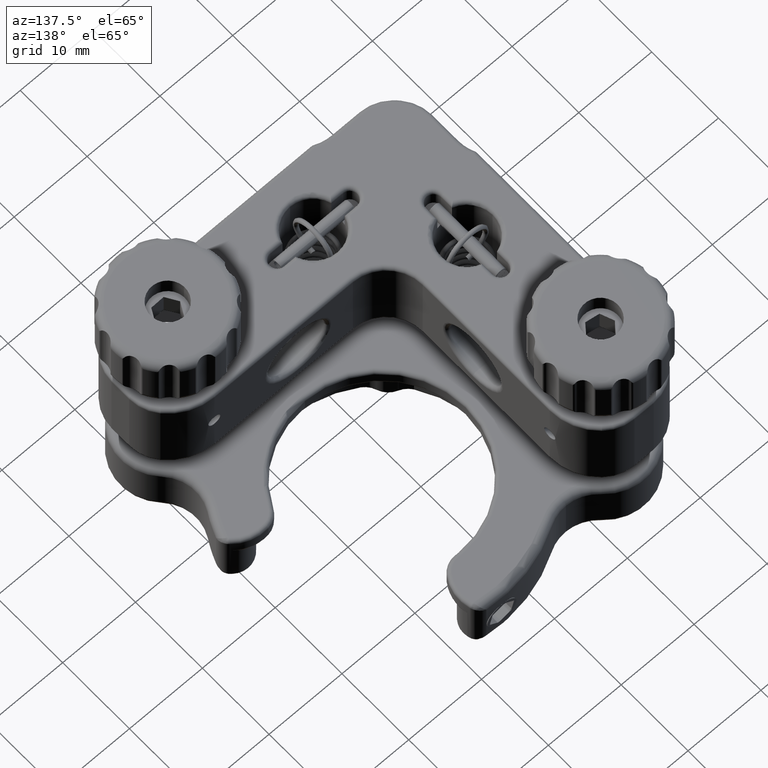
[diagram: clean part render]
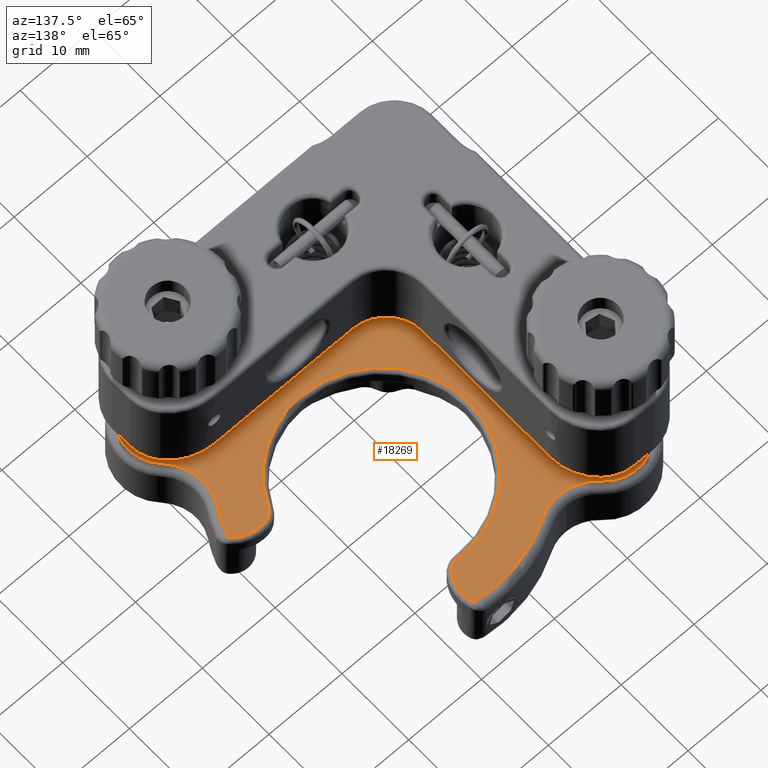
[diagram: same view with one face highlighted and labeled with its STEP entity id]
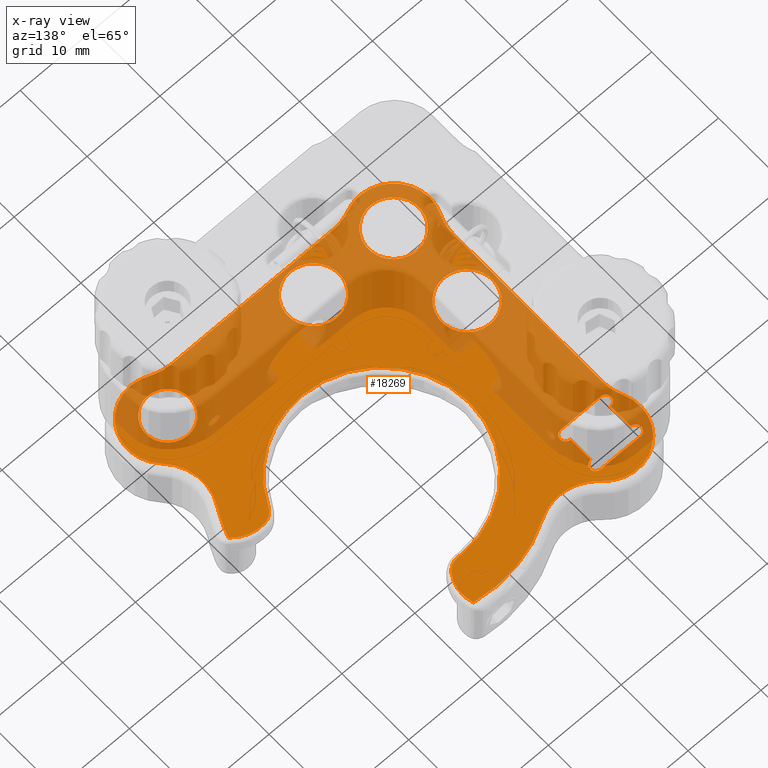
[diagram: x-ray of the same camera — body ghosted, the highlighted face saturated]
A machine part, auxiliary view. The second image highlights one B-rep face of the part: STEP entity #18269.
The next image is the same camera in x-ray: the body ghosted, the highlighted face saturated — about 53% of this face is hidden behind the body in this view.
In plain terms, the highlighted planar face has unit normal (-0, -0, -1).
Its self-contained STEP definition (entity closure, byte-faithful):
#28 = AXIS2_PLACEMENT_3D ( 'NONE', #5793, #16394, #14719 ) ;
#58 = EDGE_CURVE ( 'NONE', #18322, #8209, #10334, .T. ) ;
#112 = EDGE_CURVE ( 'NONE', #8525, #18322, #18781, .T. ) ;
#172 = CARTESIAN_POINT ( 'NONE',  ( -20.45859384005936121, 10.83108220009708766, -10.00000000000000533 ) ) ;
#280 = DIRECTION ( 'NONE',  ( 1.665334536937734811E-16, 6.342465669864681941E-17, 1.000000000000000000 ) ) ;
#313 = CARTESIAN_POINT ( 'NONE',  ( -19.70067387653270075, 13.52851386254296351, -10.00000000000000533 ) ) ;
#315 = AXIS2_PLACEMENT_3D ( 'NONE', #20773, #15407, #4969 ) ;
#329 = AXIS2_PLACEMENT_3D ( 'NONE', #16805, #8102, #20171 ) ;
#358 = ORIENTED_EDGE ( 'NONE', *, *, #445, .F. ) ;
#368 = CARTESIAN_POINT ( 'NONE',  ( -43.58220024130411474, 3.499999999999992895, -10.00000000000000178 ) ) ;
#445 = EDGE_CURVE ( 'NONE', #1038, #20770, #11479, .T. ) ;
#482 = AXIS2_PLACEMENT_3D ( 'NONE', #1894, #10707, #17734 ) ;
#513 = EDGE_CURVE ( 'NONE', #13196, #8630, #2801, .T. ) ;
#533 = CIRCLE ( 'NONE', #13420, 12.00000000000001954 ) ;
#606 = ORIENTED_EDGE ( 'NONE', *, *, #8495, .T. ) ;
#610 = VERTEX_POINT ( 'NONE', #5897 ) ;
#623 = EDGE_CURVE ( 'NONE', #16321, #20283, #9284, .T. ) ;
#694 = AXIS2_PLACEMENT_3D ( 'NONE', #997, #20311, #4521 ) ;
#719 = DIRECTION ( 'NONE',  ( -1.665334536937734811E-16, -6.342465669864681941E-17, -1.000000000000000000 ) ) ;
#734 = CARTESIAN_POINT ( 'NONE',  ( -34.53707371866273945, 33.48938301263900996, -10.00000000000000533 ) ) ;
#753 = EDGE_CURVE ( 'NONE', #8508, #14167, #6715, .T. ) ;
#794 = ORIENTED_EDGE ( 'NONE', *, *, #513, .F. ) ;
#997 = CARTESIAN_POINT ( 'NONE',  ( -35.08220024130413606, 19.49999999999995026, -10.00000000000000533 ) ) ;
#1038 = VERTEX_POINT ( 'NONE', #4951 ) ;
#1056 = VERTEX_POINT ( 'NONE', #14272 ) ;
#1077 = AXIS2_PLACEMENT_3D ( 'NONE', #18103, #2467, #9381 ) ;
#1090 = EDGE_LOOP ( 'NONE', ( #16538, #6265 ) ) ;
#1236 = LINE ( 'NONE', #1586, #21104 ) ;
#1252 = ORIENTED_EDGE ( 'NONE', *, *, #8950, .F. ) ;
#1469 = ORIENTED_EDGE ( 'NONE', *, *, #16513, .T. ) ;
#1522 = CARTESIAN_POINT ( 'NONE',  ( -57.33220024130411474, 28.00000000000003197, -10.00000000000000178 ) ) ;
#1567 = DIRECTION ( 'NONE',  ( 1.665334536937734811E-16, 6.342465669864681941E-17, 1.000000000000000000 ) ) ;
#1586 = CARTESIAN_POINT ( 'NONE',  ( -58.58220024130411474, 4.582575694955838941, -9.999999999999998224 ) ) ;
#1595 = DIRECTION ( 'NONE',  ( 0.000000000000000000, 1.000000000000000000, 0.000000000000000000 ) ) ;
#1642 = VECTOR ( 'NONE', #19815, 1000.000000000000000 ) ;
#1679 = DIRECTION ( 'NONE',  ( -1.665334536937734811E-16, -6.342465669864681941E-17, -1.000000000000000000 ) ) ;
#1707 = EDGE_CURVE ( 'NONE', #6890, #3836, #11537, .T. ) ;
#1809 = VECTOR ( 'NONE', #20981, 1000.000000000000000 ) ;
#1826 = CIRCLE ( 'NONE', #4693, 12.00000000000001954 ) ;
#1894 = CARTESIAN_POINT ( 'NONE',  ( -43.58220024130411474, 4.336808689942017736E-15, -10.00000000000000178 ) ) ;
#2053 = EDGE_CURVE ( 'NONE', #14781, #13804, #17634, .T. ) ;
#2059 = VERTEX_POINT ( 'NONE', #14920 ) ;
#2107 = CARTESIAN_POINT ( 'NONE',  ( -49.99962454634827935, -3.999999999999998224, -10.00000000000000000 ) ) ;
#2132 = EDGE_CURVE ( 'NONE', #16280, #22085, #4522, .T. ) ;
#2214 = AXIS2_PLACEMENT_3D ( 'NONE', #13365, #2731, #12996 ) ;
#2236 = DIRECTION ( 'NONE',  ( 2.428612866367527723E-14, -1.000000000000000000, 0.000000000000000000 ) ) ;
#2367 = DIRECTION ( 'NONE',  ( 1.665334536937734811E-16, 6.342465669864681941E-17, 1.000000000000000000 ) ) ;
#2467 = DIRECTION ( 'NONE',  ( 1.665334536937734811E-16, 6.342465669864681941E-17, 1.000000000000000000 ) ) ;
#2560 = DIRECTION ( 'NONE',  ( 0.000000000000000000, -1.000000000000000000, 0.000000000000000000 ) ) ;
#2607 = VERTEX_POINT ( 'NONE', #6101 ) ;
#2652 = DIRECTION ( 'NONE',  ( 0.000000000000000000, -1.000000000000000000, 0.000000000000000000 ) ) ;
#2731 = DIRECTION ( 'NONE',  ( 1.665334536937734811E-16, 6.342465669864681941E-17, 1.000000000000000000 ) ) ;
#2790 = ORIENTED_EDGE ( 'NONE', *, *, #17265, .T. ) ;
#2801 = LINE ( 'NONE', #9832, #20292 ) ;
#2903 = CARTESIAN_POINT ( 'NONE',  ( -23.58220024130412185, 2.602085213965210642E-15, -10.00000000000000533 ) ) ;
#2969 = CARTESIAN_POINT ( 'NONE',  ( -36.58220024130412185, 34.92724862054149071, -10.00000000000000533 ) ) ;
#3014 = AXIS2_PLACEMENT_3D ( 'NONE', #11902, #1679, #17625 ) ;
#3152 = AXIS2_PLACEMENT_3D ( 'NONE', #16694, #19934, #20406 ) ;
#3238 = EDGE_CURVE ( 'NONE', #21597, #7541, #17823, .T. ) ;
#3283 = ORIENTED_EDGE ( 'NONE', *, *, #112, .T. ) ;
#3291 = DIRECTION ( 'NONE',  ( 2.775557561562888984E-15, -1.000000000000000000, 0.000000000000000000 ) ) ;
#3398 = DIRECTION ( 'NONE',  ( 0.000000000000000000, -1.000000000000000000, 0.000000000000000000 ) ) ;
#3625 = DIRECTION ( 'NONE',  ( 4.857225732735055447E-14, -1.000000000000000000, 0.000000000000000000 ) ) ;
#3836 = VERTEX_POINT ( 'NONE', #15657 ) ;
#3960 = CARTESIAN_POINT ( 'NONE',  ( -51.83220024130410764, 33.99999999999997868, -10.00000000000000178 ) ) ;
#4004 = VERTEX_POINT ( 'NONE', #7224 ) ;
#4145 = ORIENTED_EDGE ( 'NONE', *, *, #2053, .T. ) ;
#4157 = DIRECTION ( 'NONE',  ( -1.665334536937734811E-16, -6.342465669864681941E-17, -1.000000000000000000 ) ) ;
#4377 = CARTESIAN_POINT ( 'NONE',  ( -27.66477593625996789, -3.999999999999991562, -10.00000000000000355 ) ) ;
#4410 = ORIENTED_EDGE ( 'NONE', *, *, #9391, .T. ) ;
#4521 = DIRECTION ( 'NONE',  ( 0.000000000000000000, -1.000000000000000000, 1.020425574104004369E-16 ) ) ;
#4522 = CIRCLE ( 'NONE', #17387, 3.499999999999989342 ) ;
#4557 = VERTEX_POINT ( 'NONE', #7238 ) ;
#4562 = EDGE_LOOP ( 'NONE', ( #794, #15201, #1252, #358, #13049, #15104, #6554, #12678 ) ) ;
#4580 = EDGE_CURVE ( 'NONE', #4004, #6735, #5343, .T. ) ;
#4606 = CARTESIAN_POINT ( 'NONE',  ( -18.93772492644867000, 14.17497260025614736, -10.00000000000000533 ) ) ;
#4612 = AXIS2_PLACEMENT_3D ( 'NONE', #7477, #16438, #21373 ) ;
#4680 = DIRECTION ( 'NONE',  ( 0.000000000000000000, 1.000000000000000000, 0.000000000000000000 ) ) ;
#4686 = EDGE_CURVE ( 'NONE', #13585, #19889, #18249, .T. ) ;
#4693 = AXIS2_PLACEMENT_3D ( 'NONE', #16782, #719, #2652 ) ;
#4800 = CARTESIAN_POINT ( 'NONE',  ( -54.58220024130412185, 14.49999999999999822, -9.999999999999998224 ) ) ;
#4829 = AXIS2_PLACEMENT_3D ( 'NONE', #2903, #15159, #13184 ) ;
#4951 = CARTESIAN_POINT ( 'NONE',  ( -51.83220024130411474, 28.00000000000003197, -10.00000000000000178 ) ) ;
#4969 = DIRECTION ( 'NONE',  ( 0.000000000000000000, -1.000000000000000000, 0.000000000000000000 ) ) ;
#5078 = CARTESIAN_POINT ( 'NONE',  ( -57.33220024130411474, 28.75000000000003197, -10.00000000000000178 ) ) ;
#5089 = DIRECTION ( 'NONE',  ( 0.000000000000000000, -1.000000000000000000, 0.000000000000000000 ) ) ;
#5236 = CARTESIAN_POINT ( 'NONE',  ( -15.29732099256120392, 7.771464153072564329, -10.00000000000000711 ) ) ;
#5343 = CIRCLE ( 'NONE', #4612, 4.500000000000008882 ) ;
#5436 = FACE_BOUND ( 'NONE', #8223, .T. ) ;
#5500 = EDGE_LOOP ( 'NONE', ( #18621, #8309 ) ) ;
#5523 = AXIS2_PLACEMENT_3D ( 'NONE', #6723, #1567, #19319 ) ;
#5537 = AXIS2_PLACEMENT_3D ( 'NONE', #7649, #5910, #11097 ) ;
#5582 = DIRECTION ( 'NONE',  ( 0.000000000000000000, -1.000000000000000000, 0.000000000000000000 ) ) ;
#5592 = ORIENTED_EDGE ( 'NONE', *, *, #13685, .T. ) ;
#5619 = CARTESIAN_POINT ( 'NONE',  ( -32.25741849363161862, 36.17073679298167121, -10.00000000000000533 ) ) ;
#5642 = LINE ( 'NONE', #21422, #1809 ) ;
#5759 = VERTEX_POINT ( 'NONE', #14021 ) ;
#5793 = CARTESIAN_POINT ( 'NONE',  ( -64.58220024130412185, 4.582575694955838941, -9.999999999999998224 ) ) ;
#5879 = CIRCLE ( 'NONE', #16899, 12.00000000000001954 ) ;
#5897 = CARTESIAN_POINT ( 'NONE',  ( -57.33220024130405790, 32.49999999999997868, -10.00000000000000178 ) ) ;
#5910 = DIRECTION ( 'NONE',  ( 1.665334536937734811E-16, 6.342465669864681941E-17, 1.000000000000000000 ) ) ;
#5971 = CARTESIAN_POINT ( 'NONE',  ( -35.08220024130413606, 7.499999999999932498, -10.00000000000000533 ) ) ;
#6024 = EDGE_LOOP ( 'NONE', ( #14785, #11931 ) ) ;
#6025 = DIRECTION ( 'NONE',  ( 0.000000000000000000, -1.000000000000000000, 0.000000000000000000 ) ) ;
#6101 = CARTESIAN_POINT ( 'NONE',  ( -51.83220024130410764, 32.49999999999997868, -10.00000000000000178 ) ) ;
#6265 = ORIENTED_EDGE ( 'NONE', *, *, #14724, .T. ) ;
#6295 = EDGE_CURVE ( 'NONE', #22085, #16280, #10217, .T. ) ;
#6380 = DIRECTION ( 'NONE',  ( 0.000000000000000000, -1.000000000000000000, 0.000000000000000000 ) ) ;
#6543 = CIRCLE ( 'NONE', #16091, 3.464101615137754830 ) ;
#6551 = DIRECTION ( 'NONE',  ( 0.000000000000000000, -1.000000000000000000, 0.000000000000000000 ) ) ;
#6554 = ORIENTED_EDGE ( 'NONE', *, *, #8296, .F. ) ;
#6608 = CARTESIAN_POINT ( 'NONE',  ( -57.33220024130411474, 28.00000000000003197, -10.00000000000000178 ) ) ;
#6715 = CIRCLE ( 'NONE', #482, 3.499999999999988454 ) ;
#6723 = CARTESIAN_POINT ( 'NONE',  ( -34.53707371866273945, 33.48938301263900996, -10.00000000000000533 ) ) ;
#6735 = VERTEX_POINT ( 'NONE', #11282 ) ;
#6890 = VERTEX_POINT ( 'NONE', #22615 ) ;
#6912 = CIRCLE ( 'NONE', #694, 16.99999999999999645 ) ;
#6941 = ORIENTED_EDGE ( 'NONE', *, *, #9759, .T. ) ;
#6943 = CARTESIAN_POINT ( 'NONE',  ( -25.16518919355678463, -4.545454545454541417, -10.00000000000000533 ) ) ;
#7077 = DIRECTION ( 'NONE',  ( 0.000000000000000000, -1.000000000000000000, 0.000000000000000000 ) ) ;
#7161 = EDGE_CURVE ( 'NONE', #13804, #11093, #21185, .T. ) ;
#7224 = CARTESIAN_POINT ( 'NONE',  ( -19.00923245711677012, 14.25094639469812208, -10.00000000000000533 ) ) ;
#7238 = CARTESIAN_POINT ( 'NONE',  ( -51.04971653536203036, 35.03858147670125334, -10.00000000000000178 ) ) ;
#7262 = CIRCLE ( 'NONE', #315, 5.000000000000004441 ) ;
#7271 = AXIS2_PLACEMENT_3D ( 'NONE', #8758, #12426, #18980 ) ;
#7276 = ORIENTED_EDGE ( 'NONE', *, *, #22555, .T. ) ;
#7305 = DIRECTION ( 'NONE',  ( 0.000000000000000000, 1.000000000000000000, 0.000000000000000000 ) ) ;
#7315 = CIRCLE ( 'NONE', #14738, 0.7500000000000006661 ) ;
#7450 = ORIENTED_EDGE ( 'NONE', *, *, #15644, .T. ) ;
#7477 = CARTESIAN_POINT ( 'NONE',  ( -22.12071884448841530, 10.99999999999995026, -10.00000000000000533 ) ) ;
#7541 = VERTEX_POINT ( 'NONE', #13329 ) ;
#7639 = DIRECTION ( 'NONE',  ( 1.665334536937734811E-16, 6.342465669864681941E-17, 1.000000000000000000 ) ) ;
#7649 = CARTESIAN_POINT ( 'NONE',  ( -51.83220024130411474, 28.75000000000003197, -10.00000000000000178 ) ) ;
#7651 = VERTEX_POINT ( 'NONE', #5619 ) ;
#7754 = CARTESIAN_POINT ( 'NONE',  ( -35.08220024130413606, 19.49999999999995026, -10.00000000000000533 ) ) ;
#7964 = DIRECTION ( 'NONE',  ( -7.362534339704861848E-17, -1.000000000000000000, 6.342465669864746036E-17 ) ) ;
#8019 = CARTESIAN_POINT ( 'NONE',  ( -54.58220024130411474, -5.204170427930421283E-15, -10.00000000000000000 ) ) ;
#8036 = EDGE_CURVE ( 'NONE', #17370, #11721, #7262, .T. ) ;
#8102 = DIRECTION ( 'NONE',  ( 1.665334536937734811E-16, 6.342465669864681941E-17, 1.000000000000000000 ) ) ;
#8103 = AXIS2_PLACEMENT_3D ( 'NONE', #9045, #16392, #7305 ) ;
#8129 = DIRECTION ( 'NONE',  ( -1.000000000000000000, 7.362534339705051667E-17, 1.665334536937734811E-16 ) ) ;
#8182 = CARTESIAN_POINT ( 'NONE',  ( -54.58220024130411474, -5.000000000000003553, -10.00000000000000000 ) ) ;
#8209 = VERTEX_POINT ( 'NONE', #22454 ) ;
#8223 = EDGE_LOOP ( 'NONE', ( #10970, #18732 ) ) ;
#8292 = EDGE_CURVE ( 'NONE', #14167, #8508, #13577, .T. ) ;
#8296 = EDGE_CURVE ( 'NONE', #610, #1056, #11765, .T. ) ;
#8309 = ORIENTED_EDGE ( 'NONE', *, *, #753, .F. ) ;
#8495 = EDGE_CURVE ( 'NONE', #4557, #21597, #11324, .T. ) ;
#8508 = VERTEX_POINT ( 'NONE', #8648 ) ;
#8525 = VERTEX_POINT ( 'NONE', #17592 ) ;
#8565 = ORIENTED_EDGE ( 'NONE', *, *, #15371, .T. ) ;
#8603 = CARTESIAN_POINT ( 'NONE',  ( -64.58220024130412185, 4.582575694955838941, -9.999999999999998224 ) ) ;
#8630 = VERTEX_POINT ( 'NONE', #22128 ) ;
#8648 = CARTESIAN_POINT ( 'NONE',  ( -43.58220024130411474, -3.499999999999984013, -10.00000000000000178 ) ) ;
#8666 = DIRECTION ( 'NONE',  ( -1.665334536937734811E-16, -6.342465669864681941E-17, -1.000000000000000000 ) ) ;
#8758 = CARTESIAN_POINT ( 'NONE',  ( -54.58220024130411474, 31.49999999999993250, -10.00000000000000178 ) ) ;
#8823 = DIRECTION ( 'NONE',  ( 1.665334536937734811E-16, 6.342465669864681941E-17, 1.000000000000000000 ) ) ;
#8950 = EDGE_CURVE ( 'NONE', #20770, #2607, #5642, .T. ) ;
#8969 = CARTESIAN_POINT ( 'NONE',  ( -23.58220024130412185, -2.999999999999995559, -10.00000000000000533 ) ) ;
#9028 = EDGE_CURVE ( 'NONE', #20283, #16321, #10967, .T. ) ;
#9045 = CARTESIAN_POINT ( 'NONE',  ( -51.83220024130410764, 33.24999999999997868, -10.00000000000000178 ) ) ;
#9047 = FACE_BOUND ( 'NONE', #4562, .T. ) ;
#9177 = FACE_OUTER_BOUND ( 'NONE', #11574, .T. ) ;
#9205 = ORIENTED_EDGE ( 'NONE', *, *, #10666, .T. ) ;
#9246 = AXIS2_PLACEMENT_3D ( 'NONE', #734, #16354, #2236 ) ;
#9284 = CIRCLE ( 'NONE', #4829, 2.999999999999998224 ) ;
#9291 = VERTEX_POINT ( 'NONE', #4606 ) ;
#9381 = DIRECTION ( 'NONE',  ( 0.000000000000000000, 1.000000000000000000, 0.000000000000000000 ) ) ;
#9391 = EDGE_CURVE ( 'NONE', #2059, #12174, #1826, .T. ) ;
#9480 = CARTESIAN_POINT ( 'NONE',  ( -64.58220024130410764, 26.91742430504415751, -10.00000000000000000 ) ) ;
#9540 = CIRCLE ( 'NONE', #2214, 16.99999999999999645 ) ;
#9759 = EDGE_CURVE ( 'NONE', #15138, #6890, #9540, .T. ) ;
#9810 = AXIS2_PLACEMENT_3D ( 'NONE', #21277, #280, #14123 ) ;
#9832 = CARTESIAN_POINT ( 'NONE',  ( -57.33220024130405790, 33.99999999999997868, -10.00000000000000178 ) ) ;
#9837 = DIRECTION ( 'NONE',  ( 0.000000000000000000, -1.000000000000000000, 0.000000000000000000 ) ) ;
#9866 = VECTOR ( 'NONE', #7964, 1000.000000000000000 ) ;
#9890 = EDGE_CURVE ( 'NONE', #11093, #17370, #14727, .T. ) ;
#9891 = CARTESIAN_POINT ( 'NONE',  ( -19.54361876460280456, 3.532483705942079499, -10.00000000000000533 ) ) ;
#9970 = ORIENTED_EDGE ( 'NONE', *, *, #9890, .T. ) ;
#10082 = EDGE_CURVE ( 'NONE', #7651, #15138, #17990, .T. ) ;
#10145 = VERTEX_POINT ( 'NONE', #18240 ) ;
#10217 = CIRCLE ( 'NONE', #329, 3.499999999999989342 ) ;
#10334 = CIRCLE ( 'NONE', #5523, 2.000000000000001776 ) ;
#10392 = EDGE_CURVE ( 'NONE', #5759, #8525, #5879, .T. ) ;
#10514 = DIRECTION ( 'NONE',  ( -1.665334536937734811E-16, -6.342465669864681941E-17, -1.000000000000000000 ) ) ;
#10528 = CARTESIAN_POINT ( 'NONE',  ( -33.21848110422551059, 35.89440608799495891, -10.00000000000000533 ) ) ;
#10532 = CARTESIAN_POINT ( 'NONE',  ( -52.49921128905146617, -4.545454545454543194, -10.00000000000000000 ) ) ;
#10666 = EDGE_CURVE ( 'NONE', #11721, #11036, #12506, .T. ) ;
#10695 = CIRCLE ( 'NONE', #22071, 5.999999999999998224 ) ;
#10707 = DIRECTION ( 'NONE',  ( 1.665334536937734811E-16, 6.342465669864681941E-17, 1.000000000000000000 ) ) ;
#10967 = CIRCLE ( 'NONE', #1077, 2.999999999999998224 ) ;
#10970 = ORIENTED_EDGE ( 'NONE', *, *, #9028, .F. ) ;
#11036 = VERTEX_POINT ( 'NONE', #172 ) ;
#11093 = VERTEX_POINT ( 'NONE', #6943 ) ;
#11097 = DIRECTION ( 'NONE',  ( 0.000000000000000000, -1.000000000000000000, 0.000000000000000000 ) ) ;
#11165 = VECTOR ( 'NONE', #15977, 1000.000000000000000 ) ;
#11282 = CARTESIAN_POINT ( 'NONE',  ( -22.70083544265812847, 15.46245052998098579, -10.00000000000000533 ) ) ;
#11324 = CIRCLE ( 'NONE', #7271, 5.000000000000004441 ) ;
#11479 = CIRCLE ( 'NONE', #5537, 0.7500000000000006661 ) ;
#11494 = CIRCLE ( 'NONE', #3014, 3.464101615137754830 ) ;
#11502 = EDGE_CURVE ( 'NONE', #10145, #16531, #11494, .T. ) ;
#11537 = CIRCLE ( 'NONE', #19549, 5.999999999999998224 ) ;
#11574 = EDGE_LOOP ( 'NONE', ( #8565, #12445, #6941, #21953, #7276, #606, #18816, #5592, #22181, #2790, #1469, #11837, #4145, #19890, #9970, #16941, #9205, #15559, #7450, #16386, #22530, #4410, #13066, #22276, #3283, #13001 ) ) ;
#11582 = CARTESIAN_POINT ( 'NONE',  ( -46.81073608823153620, 39.28487924874291082, -10.00000000000000355 ) ) ;
#11620 = CARTESIAN_POINT ( 'NONE',  ( -23.08220024130413961, 1.214306433183764966E-14, -10.00000000000000533 ) ) ;
#11632 = DIRECTION ( 'NONE',  ( -1.665334536937734811E-16, -6.342465669864681941E-17, -1.000000000000000000 ) ) ;
#11648 = DIRECTION ( 'NONE',  ( 1.665334536937734811E-16, 6.342465669864681941E-17, 1.000000000000000000 ) ) ;
#11721 = VERTEX_POINT ( 'NONE', #9891 ) ;
#11765 = LINE ( 'NONE', #15242, #9866 ) ;
#11805 = AXIS2_PLACEMENT_3D ( 'NONE', #5236, #21366, #5582 ) ;
#11837 = ORIENTED_EDGE ( 'NONE', *, *, #14370, .T. ) ;
#11902 = CARTESIAN_POINT ( 'NONE',  ( -54.58220024130411474, -5.204170427930421283E-15, -10.00000000000000000 ) ) ;
#11920 = EDGE_CURVE ( 'NONE', #1056, #16070, #15220, .T. ) ;
#11931 = ORIENTED_EDGE ( 'NONE', *, *, #6295, .F. ) ;
#12093 = CARTESIAN_POINT ( 'NONE',  ( -58.58220024130411474, 4.582575694955838941, -9.999999999999998224 ) ) ;
#12174 = VERTEX_POINT ( 'NONE', #5971 ) ;
#12278 = CARTESIAN_POINT ( 'NONE',  ( -23.58220024130412185, 3.000000000000000888, -10.00000000000000533 ) ) ;
#12426 = DIRECTION ( 'NONE',  ( 1.665334536937734811E-16, 6.342465669864681941E-17, 1.000000000000000000 ) ) ;
#12445 = ORIENTED_EDGE ( 'NONE', *, *, #10082, .T. ) ;
#12506 = CIRCLE ( 'NONE', #11805, 6.000000000000000888 ) ;
#12510 = EDGE_CURVE ( 'NONE', #6735, #2059, #12592, .T. ) ;
#12575 = DIRECTION ( 'NONE',  ( 1.734723475976808672E-15, -1.000000000000000000, 0.000000000000000000 ) ) ;
#12592 = CIRCLE ( 'NONE', #20686, 1.999999999999998224 ) ;
#12678 = ORIENTED_EDGE ( 'NONE', *, *, #21431, .F. ) ;
#12996 = DIRECTION ( 'NONE',  ( -4.489872526057619569E-15, -1.000000000000000000, 1.020425574104004369E-16 ) ) ;
#13001 = ORIENTED_EDGE ( 'NONE', *, *, #58, .T. ) ;
#13049 = ORIENTED_EDGE ( 'NONE', *, *, #20119, .F. ) ;
#13057 = DIRECTION ( 'NONE',  ( -1.665334536937734811E-16, -6.342465669864681941E-17, -1.000000000000000000 ) ) ;
#13066 = ORIENTED_EDGE ( 'NONE', *, *, #13356, .T. ) ;
#13108 = CIRCLE ( 'NONE', #3152, 5.999999999999998224 ) ;
#13184 = DIRECTION ( 'NONE',  ( 0.000000000000000000, 1.000000000000000000, 0.000000000000000000 ) ) ;
#13196 = VERTEX_POINT ( 'NONE', #3960 ) ;
#13329 = CARTESIAN_POINT ( 'NONE',  ( -58.58220024130411474, 26.91742430504415751, -10.00000000000000178 ) ) ;
#13356 = EDGE_CURVE ( 'NONE', #12174, #5759, #533, .T. ) ;
#13365 = CARTESIAN_POINT ( 'NONE',  ( -35.08220024130413606, 19.49999999999995026, -10.00000000000000533 ) ) ;
#13417 = DIRECTION ( 'NONE',  ( 0.000000000000000000, -1.000000000000000000, 0.000000000000000000 ) ) ;
#13420 = AXIS2_PLACEMENT_3D ( 'NONE', #7754, #13057, #14484 ) ;
#13560 = DIRECTION ( 'NONE',  ( 1.665334536937734811E-16, 6.342465669864681941E-17, 1.000000000000000000 ) ) ;
#13577 = CIRCLE ( 'NONE', #19775, 3.499999999999988454 ) ;
#13585 = VERTEX_POINT ( 'NONE', #12093 ) ;
#13685 = EDGE_CURVE ( 'NONE', #7541, #13585, #1236, .T. ) ;
#13780 = AXIS2_PLACEMENT_3D ( 'NONE', #5078, #19134, #1595 ) ;
#13804 = VERTEX_POINT ( 'NONE', #4377 ) ;
#13948 = CARTESIAN_POINT ( 'NONE',  ( -46.81073608823153620, 39.28487924874291082, -10.00000000000000355 ) ) ;
#14021 = CARTESIAN_POINT ( 'NONE',  ( -35.08220024130413606, 31.49999999999997158, -10.00000000000000533 ) ) ;
#14123 = DIRECTION ( 'NONE',  ( 0.000000000000000000, -1.000000000000000000, 0.000000000000000000 ) ) ;
#14167 = VERTEX_POINT ( 'NONE', #368 ) ;
#14245 = CARTESIAN_POINT ( 'NONE',  ( -32.29144035813413893, 36.26936669270752134, -10.00000000000000533 ) ) ;
#14272 = CARTESIAN_POINT ( 'NONE',  ( -57.33220024130411474, 29.50000000000003197, -10.00000000000000178 ) ) ;
#14370 = EDGE_CURVE ( 'NONE', #16440, #14781, #13108, .T. ) ;
#14484 = DIRECTION ( 'NONE',  ( 0.000000000000000000, -1.000000000000000000, 0.000000000000000000 ) ) ;
#14504 = FACE_BOUND ( 'NONE', #6024, .T. ) ;
#14688 = DIRECTION ( 'NONE',  ( 0.000000000000000000, 1.000000000000000000, 0.000000000000000000 ) ) ;
#14719 = DIRECTION ( 'NONE',  ( -7.362534339704861848E-17, -1.000000000000000000, 6.342465669864746036E-17 ) ) ;
#14724 = EDGE_CURVE ( 'NONE', #16531, #10145, #6543, .T. ) ;
#14727 = CIRCLE ( 'NONE', #20205, 5.000000000000004441 ) ;
#14738 = AXIS2_PLACEMENT_3D ( 'NONE', #17886, #7639, #6025 ) ;
#14781 = VERTEX_POINT ( 'NONE', #2107 ) ;
#14785 = ORIENTED_EDGE ( 'NONE', *, *, #2132, .F. ) ;
#14803 = DIRECTION ( 'NONE',  ( 1.665334536937734811E-16, 6.342465669864681941E-17, 1.000000000000000000 ) ) ;
#14920 = CARTESIAN_POINT ( 'NONE',  ( -24.24860504316195176, 14.33926215713377950, -10.00000000000000533 ) ) ;
#15104 = ORIENTED_EDGE ( 'NONE', *, *, #11920, .F. ) ;
#15138 = VERTEX_POINT ( 'NONE', #14245 ) ;
#15159 = DIRECTION ( 'NONE',  ( 1.665334536937734811E-16, 6.342465669864681941E-17, 1.000000000000000000 ) ) ;
#15201 = ORIENTED_EDGE ( 'NONE', *, *, #19059, .F. ) ;
#15220 = CIRCLE ( 'NONE', #13780, 0.7500000000000006661 ) ;
#15242 = CARTESIAN_POINT ( 'NONE',  ( -57.33220024130411474, 29.50000000000003197, -10.00000000000000178 ) ) ;
#15285 = CARTESIAN_POINT ( 'NONE',  ( -35.08220024130413606, 19.49999999999995026, -10.00000000000000533 ) ) ;
#15371 = EDGE_CURVE ( 'NONE', #8209, #7651, #18792, .T. ) ;
#15407 = DIRECTION ( 'NONE',  ( 1.665334536937734811E-16, 6.342465669864681941E-17, 1.000000000000000000 ) ) ;
#15559 = ORIENTED_EDGE ( 'NONE', *, *, #22712, .T. ) ;
#15644 = EDGE_CURVE ( 'NONE', #9291, #4004, #21484, .T. ) ;
#15657 = CARTESIAN_POINT ( 'NONE',  ( -46.81073608823153620, 33.28487924874291082, -10.00000000000000178 ) ) ;
#15977 = DIRECTION ( 'NONE',  ( 1.000000000000000000, -7.362534339705051667E-17, -1.665334536937734811E-16 ) ) ;
#16020 = CARTESIAN_POINT ( 'NONE',  ( -51.83220024130410764, 29.50000000000003197, -10.00000000000000178 ) ) ;
#16070 = VERTEX_POINT ( 'NONE', #6608 ) ;
#16091 = AXIS2_PLACEMENT_3D ( 'NONE', #22448, #8666, #13417 ) ;
#16280 = VERTEX_POINT ( 'NONE', #4800 ) ;
#16321 = VERTEX_POINT ( 'NONE', #8969 ) ;
#16354 = DIRECTION ( 'NONE',  ( 1.665334536937734811E-16, 6.342465669864681941E-17, 1.000000000000000000 ) ) ;
#16365 = CARTESIAN_POINT ( 'NONE',  ( -23.08220024130413961, -4.999999999999992006, -10.00000000000000533 ) ) ;
#16366 = DIRECTION ( 'NONE',  ( -1.665334536937734811E-16, -6.342465669864681941E-17, -1.000000000000000000 ) ) ;
#16386 = ORIENTED_EDGE ( 'NONE', *, *, #4580, .T. ) ;
#16392 = DIRECTION ( 'NONE',  ( 1.665334536937734811E-16, 6.342465669864681941E-17, 1.000000000000000000 ) ) ;
#16394 = DIRECTION ( 'NONE',  ( -1.665334536937734811E-16, -6.342465669864744803E-17, -1.000000000000000000 ) ) ;
#16438 = DIRECTION ( 'NONE',  ( 1.665334536937734811E-16, 6.342465669864681941E-17, 1.000000000000000000 ) ) ;
#16440 = VERTEX_POINT ( 'NONE', #10532 ) ;
#16466 = AXIS2_PLACEMENT_3D ( 'NONE', #8019, #13560, #20542 ) ;
#16513 = EDGE_CURVE ( 'NONE', #21727, #16440, #18625, .T. ) ;
#16531 = VERTEX_POINT ( 'NONE', #17850 ) ;
#16538 = ORIENTED_EDGE ( 'NONE', *, *, #11502, .T. ) ;
#16578 = CARTESIAN_POINT ( 'NONE',  ( -54.58220024130412185, 11.00000000000001066, -9.999999999999998224 ) ) ;
#16579 = CARTESIAN_POINT ( 'NONE',  ( -59.12765478675866149, 2.082988952252657011, -9.999999999999998224 ) ) ;
#16694 = CARTESIAN_POINT ( 'NONE',  ( -49.99962454634827935, -9.999999999999998224, -10.00000000000000000 ) ) ;
#16782 = CARTESIAN_POINT ( 'NONE',  ( -35.08220024130413606, 19.49999999999995026, -10.00000000000000533 ) ) ;
#16805 = CARTESIAN_POINT ( 'NONE',  ( -54.58220024130412185, 11.00000000000001066, -9.999999999999998224 ) ) ;
#16848 = DIRECTION ( 'NONE',  ( -1.665334536937734811E-16, -6.342465669864681941E-17, -1.000000000000000000 ) ) ;
#16899 = AXIS2_PLACEMENT_3D ( 'NONE', #15285, #16848, #6380 ) ;
#16941 = ORIENTED_EDGE ( 'NONE', *, *, #8036, .T. ) ;
#17169 = CARTESIAN_POINT ( 'NONE',  ( -22.44300584347159244, 13.47913918332275074, -10.00000000000000533 ) ) ;
#17265 = EDGE_CURVE ( 'NONE', #19889, #21727, #22340, .T. ) ;
#17370 = VERTEX_POINT ( 'NONE', #16365 ) ;
#17387 = AXIS2_PLACEMENT_3D ( 'NONE', #16578, #14803, #14688 ) ;
#17428 = AXIS2_PLACEMENT_3D ( 'NONE', #313, #2367, #7077 ) ;
#17460 = LINE ( 'NONE', #1522, #11165 ) ;
#17592 = CARTESIAN_POINT ( 'NONE',  ( -34.61494893618294100, 31.49089972511915647, -10.00000000000000533 ) ) ;
#17625 = DIRECTION ( 'NONE',  ( 0.000000000000000000, -1.000000000000000000, 0.000000000000000000 ) ) ;
#17628 = CIRCLE ( 'NONE', #8103, 0.7500000000000006661 ) ;
#17634 = LINE ( 'NONE', #20040, #1642 ) ;
#17691 = AXIS2_PLACEMENT_3D ( 'NONE', #2969, #20121, #6551 ) ;
#17734 = DIRECTION ( 'NONE',  ( 0.000000000000000000, 1.000000000000000000, 0.000000000000000000 ) ) ;
#17823 = CIRCLE ( 'NONE', #20414, 5.999999999999998224 ) ;
#17850 = CARTESIAN_POINT ( 'NONE',  ( -54.58220024130411474, 3.464101615137749501, -10.00000000000000000 ) ) ;
#17886 = CARTESIAN_POINT ( 'NONE',  ( -57.33220024130405790, 33.24999999999997868, -10.00000000000000178 ) ) ;
#17905 = PLANE ( 'NONE',  #28 ) ;
#17990 = CIRCLE ( 'NONE', #20927, 1.000000000000000888 ) ;
#18012 = FACE_BOUND ( 'NONE', #1090, .T. ) ;
#18103 = CARTESIAN_POINT ( 'NONE',  ( -23.58220024130412185, 2.602085213965210642E-15, -10.00000000000000533 ) ) ;
#18240 = CARTESIAN_POINT ( 'NONE',  ( -54.58220024130411474, -3.464101615137760160, -10.00000000000000000 ) ) ;
#18249 = CIRCLE ( 'NONE', #22265, 5.999999999999999112 ) ;
#18269 = ADVANCED_FACE ( 'NONE', ( #9047, #5436, #19734, #14504, #18012, #9177 ), #17905, .F. ) ;
#18322 = VERTEX_POINT ( 'NONE', #18458 ) ;
#18458 = CARTESIAN_POINT ( 'NONE',  ( -34.53707371866273945, 31.48938301263900996, -10.00000000000000533 ) ) ;
#18517 = DIRECTION ( 'NONE',  ( 0.000000000000000000, -1.000000000000000000, 0.000000000000000000 ) ) ;
#18621 = ORIENTED_EDGE ( 'NONE', *, *, #8292, .F. ) ;
#18625 = CIRCLE ( 'NONE', #9810, 4.999999999999998224 ) ;
#18732 = ORIENTED_EDGE ( 'NONE', *, *, #623, .F. ) ;
#18781 = CIRCLE ( 'NONE', #9246, 2.000000000000001776 ) ;
#18792 = CIRCLE ( 'NONE', #17691, 4.499999999999993783 ) ;
#18816 = ORIENTED_EDGE ( 'NONE', *, *, #3238, .T. ) ;
#18914 = DIRECTION ( 'NONE',  ( -7.362534339704861848E-17, -1.000000000000000000, 6.342465669864746036E-17 ) ) ;
#18980 = DIRECTION ( 'NONE',  ( 0.000000000000000000, -1.000000000000000000, 0.000000000000000000 ) ) ;
#19059 = EDGE_CURVE ( 'NONE', #2607, #13196, #17628, .T. ) ;
#19134 = DIRECTION ( 'NONE',  ( 1.665334536937734811E-16, 6.342465669864681941E-17, 1.000000000000000000 ) ) ;
#19319 = DIRECTION ( 'NONE',  ( 0.000000000000000000, -1.000000000000000000, 0.000000000000000000 ) ) ;
#19329 = AXIS2_PLACEMENT_3D ( 'NONE', #20477, #11632, #18517 ) ;
#19549 = AXIS2_PLACEMENT_3D ( 'NONE', #11582, #4157, #9837 ) ;
#19734 = FACE_BOUND ( 'NONE', #5500, .T. ) ;
#19775 = AXIS2_PLACEMENT_3D ( 'NONE', #21963, #11648, #4680 ) ;
#19815 = DIRECTION ( 'NONE',  ( 1.000000000000000000, 3.147192355747673627E-16, -1.665334536937735057E-16 ) ) ;
#19889 = VERTEX_POINT ( 'NONE', #16579 ) ;
#19890 = ORIENTED_EDGE ( 'NONE', *, *, #7161, .T. ) ;
#19934 = DIRECTION ( 'NONE',  ( -1.665334536937734811E-16, -6.342465669864681941E-17, -1.000000000000000000 ) ) ;
#20040 = CARTESIAN_POINT ( 'NONE',  ( -64.58220024130410764, -3.999999999999996447, -9.999999999999998224 ) ) ;
#20119 = EDGE_CURVE ( 'NONE', #16070, #1038, #17460, .T. ) ;
#20121 = DIRECTION ( 'NONE',  ( 1.665334536937734811E-16, 6.342465669864681941E-17, 1.000000000000000000 ) ) ;
#20171 = DIRECTION ( 'NONE',  ( 0.000000000000000000, 1.000000000000000000, 0.000000000000000000 ) ) ;
#20205 = AXIS2_PLACEMENT_3D ( 'NONE', #11620, #22263, #3291 ) ;
#20283 = VERTEX_POINT ( 'NONE', #12278 ) ;
#20292 = VECTOR ( 'NONE', #8129, 1000.000000000000000 ) ;
#20311 = DIRECTION ( 'NONE',  ( 1.665334536937734811E-16, 6.342465669864681941E-17, 1.000000000000000000 ) ) ;
#20406 = DIRECTION ( 'NONE',  ( 0.000000000000000000, -1.000000000000000000, 0.000000000000000000 ) ) ;
#20414 = AXIS2_PLACEMENT_3D ( 'NONE', #9480, #16366, #2560 ) ;
#20477 = CARTESIAN_POINT ( 'NONE',  ( -27.66477593625996789, -9.999999999999991118, -10.00000000000000355 ) ) ;
#20542 = DIRECTION ( 'NONE',  ( 0.000000000000000000, -1.000000000000000000, 0.000000000000000000 ) ) ;
#20686 = AXIS2_PLACEMENT_3D ( 'NONE', #17169, #20965, #12575 ) ;
#20770 = VERTEX_POINT ( 'NONE', #16020 ) ;
#20773 = CARTESIAN_POINT ( 'NONE',  ( -23.08220024130413961, 1.214306433183764966E-14, -10.00000000000000533 ) ) ;
#20927 = AXIS2_PLACEMENT_3D ( 'NONE', #10528, #8823, #3625 ) ;
#20947 = CARTESIAN_POINT ( 'NONE',  ( -59.12765478675866149, 29.41701104774733366, -10.00000000000000178 ) ) ;
#20965 = DIRECTION ( 'NONE',  ( 1.665334536937734811E-16, 6.342465669864681941E-17, 1.000000000000000000 ) ) ;
#20981 = DIRECTION ( 'NONE',  ( 7.362534339704861848E-17, 1.000000000000000000, -6.342465669864746036E-17 ) ) ;
#21104 = VECTOR ( 'NONE', #18914, 1000.000000000000000 ) ;
#21185 = CIRCLE ( 'NONE', #19329, 5.999999999999994671 ) ;
#21277 = CARTESIAN_POINT ( 'NONE',  ( -54.58220024130411474, -5.204170427930421283E-15, -10.00000000000000000 ) ) ;
#21366 = DIRECTION ( 'NONE',  ( -1.665334536937734811E-16, -6.342465669864681941E-17, -1.000000000000000000 ) ) ;
#21373 = DIRECTION ( 'NONE',  ( -1.541976423090492083E-15, -1.000000000000000000, 0.000000000000000000 ) ) ;
#21422 = CARTESIAN_POINT ( 'NONE',  ( -51.83220024130410764, 29.50000000000003197, -10.00000000000000178 ) ) ;
#21431 = EDGE_CURVE ( 'NONE', #8630, #610, #7315, .T. ) ;
#21484 = CIRCLE ( 'NONE', #17428, 1.000000000000011324 ) ;
#21597 = VERTEX_POINT ( 'NONE', #20947 ) ;
#21727 = VERTEX_POINT ( 'NONE', #8182 ) ;
#21953 = ORIENTED_EDGE ( 'NONE', *, *, #1707, .T. ) ;
#21963 = CARTESIAN_POINT ( 'NONE',  ( -43.58220024130411474, 4.336808689942017736E-15, -10.00000000000000178 ) ) ;
#22071 = AXIS2_PLACEMENT_3D ( 'NONE', #13948, #22752, #5089 ) ;
#22085 = VERTEX_POINT ( 'NONE', #22174 ) ;
#22128 = CARTESIAN_POINT ( 'NONE',  ( -57.33220024130405790, 33.99999999999997868, -10.00000000000000178 ) ) ;
#22174 = CARTESIAN_POINT ( 'NONE',  ( -54.58220024130412185, 7.500000000000020428, -9.999999999999998224 ) ) ;
#22181 = ORIENTED_EDGE ( 'NONE', *, *, #4686, .T. ) ;
#22263 = DIRECTION ( 'NONE',  ( 1.665334536937734811E-16, 6.342465669864681941E-17, 1.000000000000000000 ) ) ;
#22265 = AXIS2_PLACEMENT_3D ( 'NONE', #8603, #10514, #3398 ) ;
#22276 = ORIENTED_EDGE ( 'NONE', *, *, #10392, .T. ) ;
#22340 = CIRCLE ( 'NONE', #16466, 4.999999999999998224 ) ;
#22448 = CARTESIAN_POINT ( 'NONE',  ( -54.58220024130411474, -5.204170427930421283E-15, -10.00000000000000000 ) ) ;
#22454 = CARTESIAN_POINT ( 'NONE',  ( -32.90097250054964206, 32.33909052631702252, -10.00000000000000533 ) ) ;
#22530 = ORIENTED_EDGE ( 'NONE', *, *, #12510, .T. ) ;
#22555 = EDGE_CURVE ( 'NONE', #3836, #4557, #10695, .T. ) ;
#22615 = CARTESIAN_POINT ( 'NONE',  ( -43.75111804120698622, 34.12360640124475708, -10.00000000000000355 ) ) ;
#22712 = EDGE_CURVE ( 'NONE', #11036, #9291, #6912, .T. ) ;
#22752 = DIRECTION ( 'NONE',  ( -1.665334536937734811E-16, -6.342465669864681941E-17, -1.000000000000000000 ) ) ;